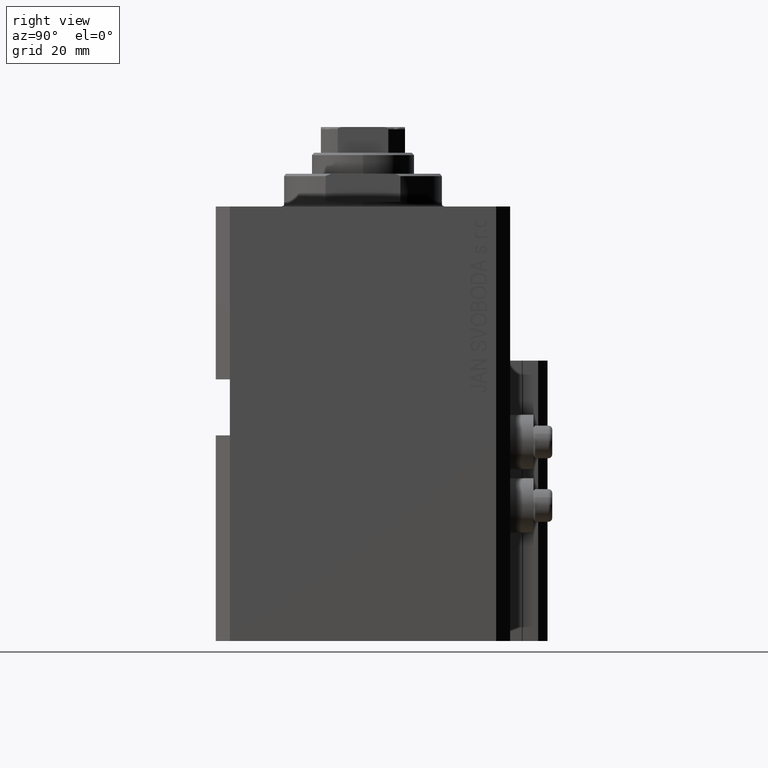
[diagram: clean part render]
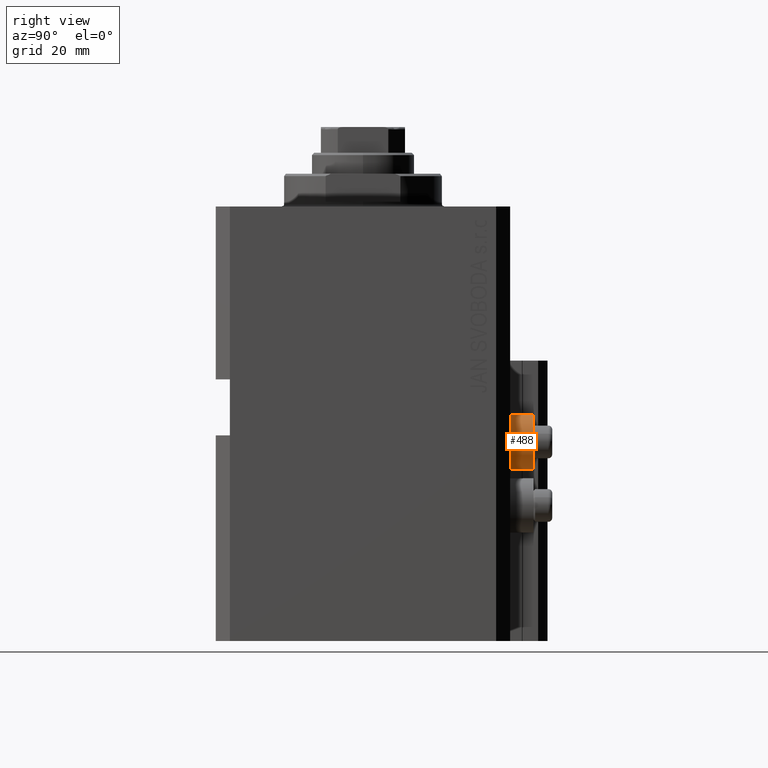
[diagram: same view with one face highlighted and labeled with its STEP entity id]
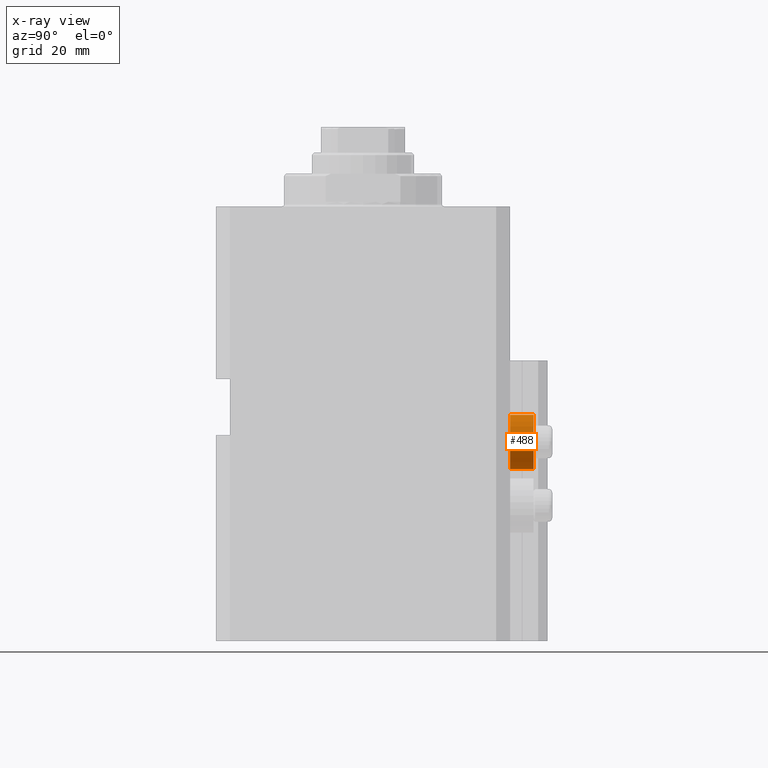
[diagram: x-ray of the same camera — body ghosted, the highlighted face saturated]
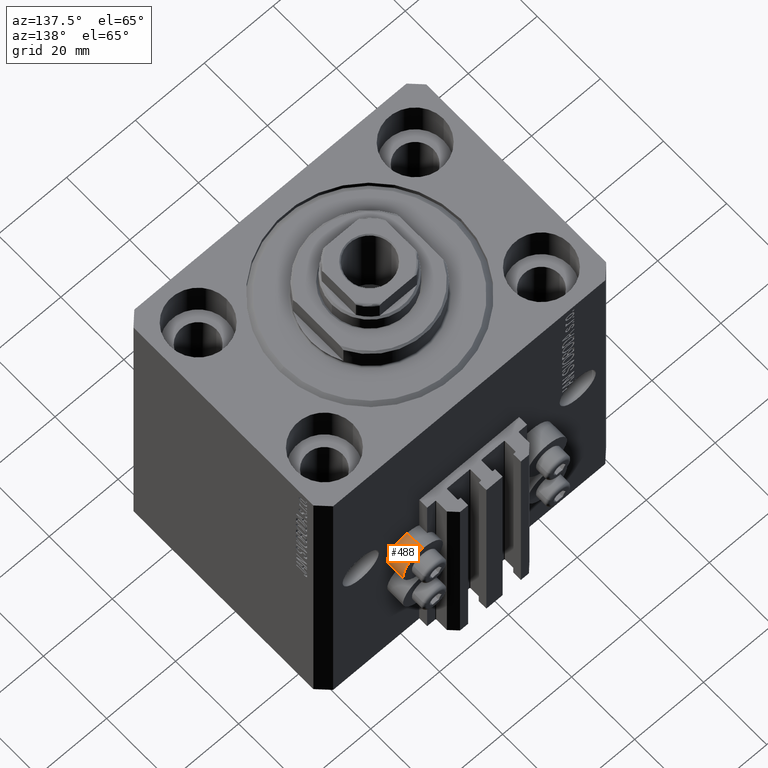
[diagram: same view with one face highlighted and labeled with its STEP entity id]
A machine part, right view. The second image highlights one B-rep face of the part: STEP entity #488.
The next image is the same camera in x-ray: the body ghosted, the highlighted face saturated — about 0% of this face is hidden behind the body in this view.
A second angle (auxiliary view) of the same face is appended — the face is thin or edge-on in the first view.
In plain terms, the highlighted cylindrical surface (edge-blend (fillet) strip) has radius 5.8 mm, axis along (0, 1, 0).
Its self-contained STEP definition (entity closure, byte-faithful):
#488 = ADVANCED_FACE ( 'NONE', ( #26696 ), #5020, .T. ) ;
#912 = DIRECTION ( 'NONE',  ( -0.000000000000000000, -1.000000000000000000, -0.000000000000000000 ) ) ;
#1249 = DIRECTION ( 'NONE',  ( -0.000000000000000000, -1.000000000000000000, -0.000000000000000000 ) ) ;
#5020 = CYLINDRICAL_SURFACE ( 'NONE', #28189, 5.799999999999999822 ) ;
#5253 = CARTESIAN_POINT ( 'NONE',  ( 18.00000000000000355, 36.49999999996099120, -50.39999999999999858 ) ) ;
#5715 = DIRECTION ( 'NONE',  ( 0.000000000000000000, 1.000000000000000000, 0.000000000000000000 ) ) ;
#6934 = VECTOR ( 'NONE', #5715, 1000.000000000000000 ) ;
#7138 = CARTESIAN_POINT ( 'NONE',  ( 18.00000000000000355, 36.49999999996099120, -56.20000000000000284 ) ) ;
#9087 = CARTESIAN_POINT ( 'NONE',  ( 18.00000000000000355, 31.50000000000000000, -44.60000000000000142 ) ) ;
#9121 = AXIS2_PLACEMENT_3D ( 'NONE', #33868, #912, #22563 ) ;
#12044 = VERTEX_POINT ( 'NONE', #26969 ) ;
#12064 = DIRECTION ( 'NONE',  ( 0.000000000000000000, 0.000000000000000000, 1.000000000000000000 ) ) ;
#12854 = EDGE_CURVE ( 'NONE', #12044, #28257, #20637, .T. ) ;
#13577 = ORIENTED_EDGE ( 'NONE', *, *, #41336, .F. ) ;
#15667 = VERTEX_POINT ( 'NONE', #29240 ) ;
#18263 = EDGE_LOOP ( 'NONE', ( #24794, #39026, #27839, #13577 ) ) ;
#18633 = VERTEX_POINT ( 'NONE', #20979 ) ;
#20167 = LINE ( 'NONE', #46391, #6934 ) ;
#20637 = CIRCLE ( 'NONE', #9121, 5.799999999999999822 ) ;
#20979 = CARTESIAN_POINT ( 'NONE',  ( 18.00000000000000355, 36.49999999996099120, -44.60000000000000142 ) ) ;
#22563 = DIRECTION ( 'NONE',  ( 0.000000000000000000, 0.000000000000000000, 1.000000000000000000 ) ) ;
#24794 = ORIENTED_EDGE ( 'NONE', *, *, #12854, .F. ) ;
#26152 = LINE ( 'NONE', #7138, #41659 ) ;
#26696 = FACE_OUTER_BOUND ( 'NONE', #18263, .T. ) ;
#26969 = CARTESIAN_POINT ( 'NONE',  ( 18.00000000000000355, 31.50000000000000000, -56.20000000000000284 ) ) ;
#27839 = ORIENTED_EDGE ( 'NONE', *, *, #36820, .T. ) ;
#28189 = AXIS2_PLACEMENT_3D ( 'NONE', #5253, #44981, #30535 ) ;
#28257 = VERTEX_POINT ( 'NONE', #9087 ) ;
#29240 = CARTESIAN_POINT ( 'NONE',  ( 18.00000000000000355, 36.49999999996099120, -56.20000000000000284 ) ) ;
#30535 = DIRECTION ( 'NONE',  ( 0.000000000000000000, 0.000000000000000000, 1.000000000000000000 ) ) ;
#30830 = CARTESIAN_POINT ( 'NONE',  ( 18.00000000000000355, 36.49999999996099120, -50.39999999999999858 ) ) ;
#33868 = CARTESIAN_POINT ( 'NONE',  ( 18.00000000000000355, 31.50000000000000000, -50.39999999999999858 ) ) ;
#36502 = DIRECTION ( 'NONE',  ( 0.000000000000000000, 1.000000000000000000, 0.000000000000000000 ) ) ;
#36820 = EDGE_CURVE ( 'NONE', #15667, #18633, #38206, .T. ) ;
#38206 = CIRCLE ( 'NONE', #44369, 5.799999999999999822 ) ;
#39026 = ORIENTED_EDGE ( 'NONE', *, *, #45670, .T. ) ;
#41336 = EDGE_CURVE ( 'NONE', #28257, #18633, #20167, .T. ) ;
#41659 = VECTOR ( 'NONE', #36502, 1000.000000000000000 ) ;
#44369 = AXIS2_PLACEMENT_3D ( 'NONE', #30830, #1249, #12064 ) ;
#44981 = DIRECTION ( 'NONE',  ( 0.000000000000000000, 1.000000000000000000, 0.000000000000000000 ) ) ;
#45670 = EDGE_CURVE ( 'NONE', #12044, #15667, #26152, .T. ) ;
#46391 = CARTESIAN_POINT ( 'NONE',  ( 18.00000000000000355, 36.49999999996099120, -44.60000000000000142 ) ) ;